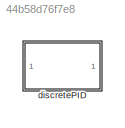
MODEL slx_44b58d76f7e8
KIND library
CONFIG AbsTol = auto
CONFIG EnableMultiTasking = off
CONFIG FixedStep = auto
CONFIG MaxStep = auto
CONFIG MinStep = auto
CONFIG RelTol = 1e-3
CONFIG SampleTimeConstraint = Unconstrained
CONFIG SolverName = VariableStepAuto
CONFIG StartTime = 0.0
CONFIG StopTime = 10.0
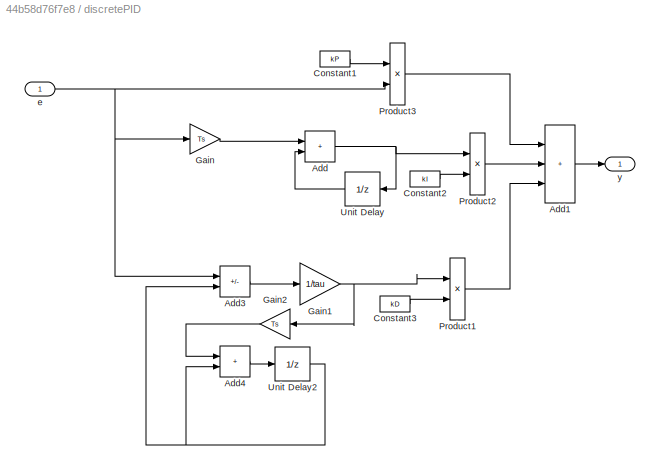
BLOCK [SubSystem] discretePID
  Ports = [1, 1]
  RequestExecContextInheritance = off
BLOCK [Sum] discretePID/Add
  IconShape = rectangular
  Ports = [2, 1]
BLOCK [Sum] discretePID/Add1
  IconShape = rectangular
  Inputs = +++
  Ports = [3, 1]
BLOCK [Sum] discretePID/Add3
  IconShape = rectangular
  Inputs = +-
  Ports = [2, 1]
BLOCK [Sum] discretePID/Add4
  IconShape = rectangular
  Ports = [2, 1]
BLOCK [Constant] discretePID/Constant1
  Value = kP
BLOCK [Constant] discretePID/Constant2
  Value = kI
BLOCK [Constant] discretePID/Constant3
  Value = kD
BLOCK [Gain] discretePID/Gain
  Gain = Ts
BLOCK [Gain] discretePID/Gain1
  Gain = 1/tau
BLOCK [Gain] discretePID/Gain2
  Gain = Ts
BLOCK [Product] discretePID/Product1
  Ports = [2, 1]
BLOCK [Product] discretePID/Product2
  Ports = [2, 1]
BLOCK [Product] discretePID/Product3
  Ports = [2, 1]
BLOCK [UnitDelay] discretePID/Unit Delay
  HasFrameUpgradeWarning = on
  SampleTime = -1
BLOCK [UnitDelay] discretePID/Unit Delay2
  HasFrameUpgradeWarning = on
  SampleTime = -1
BLOCK [Inport] discretePID/e
BLOCK [Outport] discretePID/y
LINE discretePID/Add1:1 -> discretePID/y:1
LINE discretePID/Add3:1 -> discretePID/Gain1:1
LINE discretePID/Add4:1 -> discretePID/Unit Delay2:1
NET discretePID/Add:1 -> discretePID/Product2:1, discretePID/Unit Delay:1
LINE discretePID/Constant1:1 -> discretePID/Product3:1
LINE discretePID/Constant2:1 -> discretePID/Product2:2
LINE discretePID/Constant3:1 -> discretePID/Product1:2
NET discretePID/Gain1:1 -> discretePID/Gain2:1, discretePID/Product1:1
LINE discretePID/Gain2:1 -> discretePID/Add4:1
LINE discretePID/Gain:1 -> discretePID/Add:1
LINE discretePID/Product1:1 -> discretePID/Add1:3
LINE discretePID/Product2:1 -> discretePID/Add1:2
LINE discretePID/Product3:1 -> discretePID/Add1:1
NET discretePID/Unit Delay2:1 -> discretePID/Add3:2, discretePID/Add4:2
LINE discretePID/Unit Delay:1 -> discretePID/Add:2
NET discretePID/e:1 -> discretePID/Add3:1, discretePID/Gain:1, discretePID/Product3:2
note: NET lines group one-source signal fan-out (src -> all destinations, sorted); 1:1 wires keep LINE
